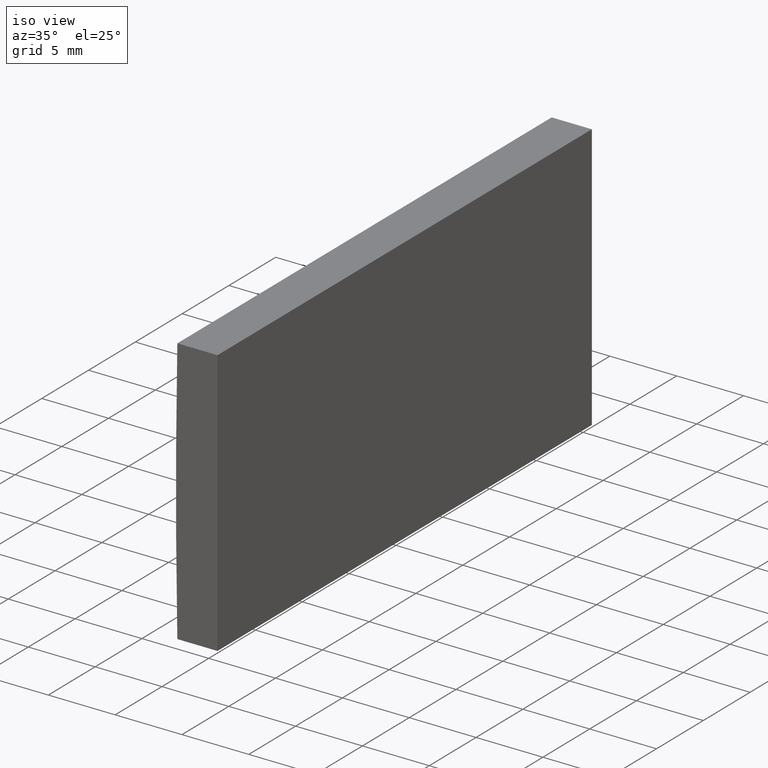
[diagram: clean part render]
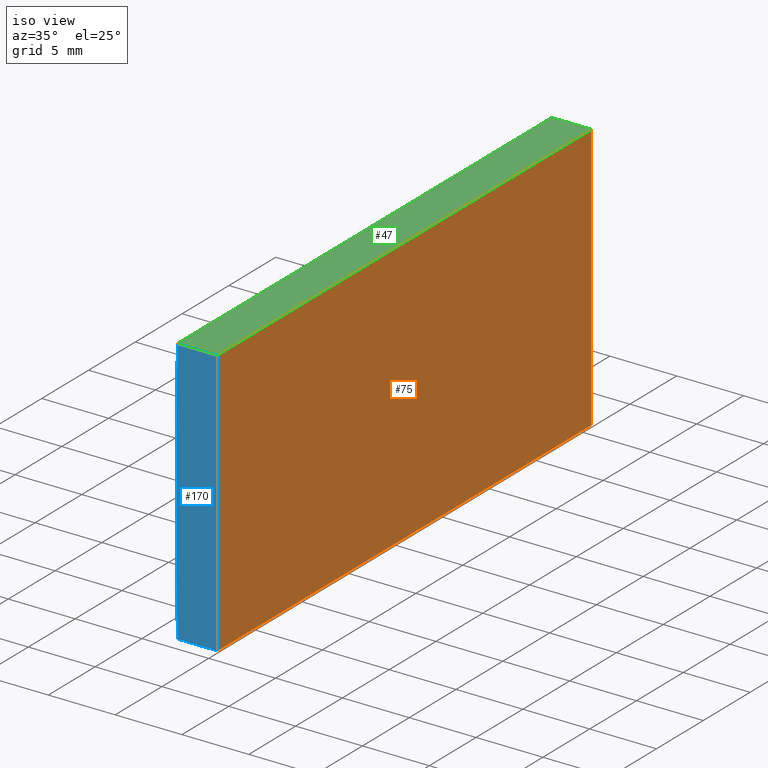
[diagram: same view with three faces highlighted in distinct colors, each labeled with its STEP entity id]
A machine part, iso view with three faces highlighted in distinct colors.
Their STEP definitions:

[orange] entity #75 — the highlighted planar face has unit normal (-1, 0, 0).
#10 = LINE ( 'NONE', #122, #81 ) ;
#19 = DIRECTION ( 'NONE',  ( -0.0000000000000000000, -1.000000000000000000, -0.0000000000000000000 ) ) ;
#22 = LINE ( 'NONE', #138, #135 ) ;
#26 = PLANE ( 'NONE',  #132 ) ;
#39 = CARTESIAN_POINT ( 'NONE',  ( -509.3447956651486900, 0.0000000000000000000, -10.00000000000000400 ) ) ;
#44 = CARTESIAN_POINT ( 'NONE',  ( -509.3447956651486900, 0.0000000000000000000, -10.00000000000000400 ) ) ;
#51 = ORIENTED_EDGE ( 'NONE', *, *, #146, .F. ) ;
#59 = LINE ( 'NONE', #82, #84 ) ;
#61 = CARTESIAN_POINT ( 'NONE',  ( -509.3447956651486900, 40.00000000000000000, -10.00000000000000400 ) ) ;
#70 = LINE ( 'NONE', #44, #139 ) ;
#74 = DIRECTION ( 'NONE',  ( 0.0000000000000000000, 0.0000000000000000000, 1.000000000000000000 ) ) ;
#75 = ADVANCED_FACE ( 'NONE', ( #193 ), #26, .F. ) ;
#81 = VECTOR ( 'NONE', #118, 1000.000000000000000 ) ;
#82 = CARTESIAN_POINT ( 'NONE',  ( -509.3447956651486900, 40.00000000000000000, -10.00000000000000400 ) ) ;
#84 = VECTOR ( 'NONE', #141, 1000.000000000000000 ) ;
#91 = DIRECTION ( 'NONE',  ( -1.000000000000000000, 0.0000000000000000000, 0.0000000000000000000 ) ) ;
#97 = VERTEX_POINT ( 'NONE', #200 ) ;
#114 = DIRECTION ( 'NONE',  ( -0.0000000000000000000, -0.0000000000000000000, -1.000000000000000000 ) ) ;
#116 = EDGE_CURVE ( 'NONE', #151, #131, #70, .T. ) ;
#118 = DIRECTION ( 'NONE',  ( -0.0000000000000000000, -1.000000000000000000, -0.0000000000000000000 ) ) ;
#122 = CARTESIAN_POINT ( 'NONE',  ( -509.3447956651486900, 40.00000000000000000, 10.00000000000000000 ) ) ;
#127 = EDGE_CURVE ( 'NONE', #97, #151, #10, .T. ) ;
#131 = VERTEX_POINT ( 'NONE', #39 ) ;
#132 = AXIS2_PLACEMENT_3D ( 'NONE', #154, #91, #74 ) ;
#135 = VECTOR ( 'NONE', #19, 1000.000000000000000 ) ;
#138 = CARTESIAN_POINT ( 'NONE',  ( -509.3447956651486900, 40.00000000000000000, -10.00000000000000400 ) ) ;
#139 = VECTOR ( 'NONE', #114, 1000.000000000000000 ) ;
#140 = EDGE_LOOP ( 'NONE', ( #183, #169, #51, #186 ) ) ;
#141 = DIRECTION ( 'NONE',  ( -0.0000000000000000000, -0.0000000000000000000, -1.000000000000000000 ) ) ;
#146 = EDGE_CURVE ( 'NONE', #97, #179, #59, .T. ) ;
#151 = VERTEX_POINT ( 'NONE', #189 ) ;
#154 = CARTESIAN_POINT ( 'NONE',  ( -509.3447956651486900, 40.00000000000000000, -10.00000000000000400 ) ) ;
#165 = EDGE_CURVE ( 'NONE', #179, #131, #22, .T. ) ;
#169 = ORIENTED_EDGE ( 'NONE', *, *, #165, .F. ) ;
#179 = VERTEX_POINT ( 'NONE', #61 ) ;
#183 = ORIENTED_EDGE ( 'NONE', *, *, #116, .T. ) ;
#186 = ORIENTED_EDGE ( 'NONE', *, *, #127, .T. ) ;
#189 = CARTESIAN_POINT ( 'NONE',  ( -509.3447956651486900, 0.0000000000000000000, 10.00000000000000000 ) ) ;
#193 = FACE_OUTER_BOUND ( 'NONE', #140, .T. ) ;
#200 = CARTESIAN_POINT ( 'NONE',  ( -509.3447956651486900, 40.00000000000000000, 10.00000000000000000 ) ) ;

[blue] entity #170 — the highlighted planar face has unit normal (0, 1, 0).
#1 = CARTESIAN_POINT ( 'NONE',  ( -512.3480373813197300, 0.0000000000000000000, 10.00000000000000000 ) ) ;
#13 = CARTESIAN_POINT ( 'NONE',  ( -512.3480373813197300, 0.0000000000000000000, -10.00000000000000000 ) ) ;
#16 = PLANE ( 'NONE',  #176 ) ;
#20 = AXIS2_PLACEMENT_3D ( 'NONE', #80, #202, #155 ) ;
#23 = ORIENTED_EDGE ( 'NONE', *, *, #116, .F. ) ;
#24 = CARTESIAN_POINT ( 'NONE',  ( -512.3480373813197300, 0.0000000000000000000, -10.00000000000000000 ) ) ;
#33 = FACE_OUTER_BOUND ( 'NONE', #100, .T. ) ;
#39 = CARTESIAN_POINT ( 'NONE',  ( -509.3447956651486900, 0.0000000000000000000, -10.00000000000000400 ) ) ;
#42 = EDGE_CURVE ( 'NONE', #145, #151, #111, .T. ) ;
#44 = CARTESIAN_POINT ( 'NONE',  ( -509.3447956651486900, 0.0000000000000000000, -10.00000000000000400 ) ) ;
#54 = VECTOR ( 'NONE', #159, 1000.000000000000000 ) ;
#64 = CIRCLE ( 'NONE', #20, 516.7999999999998400 ) ;
#66 = ORIENTED_EDGE ( 'NONE', *, *, #42, .F. ) ;
#68 = DIRECTION ( 'NONE',  ( 0.0000000000000000000, 1.000000000000000000, 0.0000000000000000000 ) ) ;
#69 = LINE ( 'NONE', #24, #54 ) ;
#70 = LINE ( 'NONE', #44, #139 ) ;
#78 = DIRECTION ( 'NONE',  ( 0.0000000000000000000, -0.0000000000000000000, 1.000000000000000000 ) ) ;
#79 = DIRECTION ( 'NONE',  ( 1.000000000000000000, 0.0000000000000000000, 0.0000000000000000000 ) ) ;
#80 = CARTESIAN_POINT ( 'NONE',  ( 4.355204334851265500, 0.0000000000000000000, 4.286263797015675000E-017 ) ) ;
#89 = EDGE_CURVE ( 'NONE', #131, #171, #69, .T. ) ;
#90 = VECTOR ( 'NONE', #79, 1000.000000000000000 ) ;
#100 = EDGE_LOOP ( 'NONE', ( #164, #175, #23, #66 ) ) ;
#111 = LINE ( 'NONE', #162, #90 ) ;
#114 = DIRECTION ( 'NONE',  ( -0.0000000000000000000, -0.0000000000000000000, -1.000000000000000000 ) ) ;
#116 = EDGE_CURVE ( 'NONE', #151, #131, #70, .T. ) ;
#129 = CARTESIAN_POINT ( 'NONE',  ( 4.355204334851265500, 0.0000000000000000000, 4.286263797015675000E-017 ) ) ;
#131 = VERTEX_POINT ( 'NONE', #39 ) ;
#139 = VECTOR ( 'NONE', #114, 1000.000000000000000 ) ;
#145 = VERTEX_POINT ( 'NONE', #1 ) ;
#151 = VERTEX_POINT ( 'NONE', #189 ) ;
#155 = DIRECTION ( 'NONE',  ( 0.0000000000000000000, 0.0000000000000000000, 1.000000000000000000 ) ) ;
#159 = DIRECTION ( 'NONE',  ( -1.000000000000000000, -0.0000000000000000000, 1.155234003734118200E-015 ) ) ;
#162 = CARTESIAN_POINT ( 'NONE',  ( -512.3480373813197300, 0.0000000000000000000, 10.00000000000000000 ) ) ;
#164 = ORIENTED_EDGE ( 'NONE', *, *, #180, .F. ) ;
#170 = ADVANCED_FACE ( 'NONE', ( #33 ), #16, .F. ) ;
#171 = VERTEX_POINT ( 'NONE', #13 ) ;
#175 = ORIENTED_EDGE ( 'NONE', *, *, #89, .F. ) ;
#176 = AXIS2_PLACEMENT_3D ( 'NONE', #129, #68, #78 ) ;
#180 = EDGE_CURVE ( 'NONE', #171, #145, #64, .T. ) ;
#189 = CARTESIAN_POINT ( 'NONE',  ( -509.3447956651486900, 0.0000000000000000000, 10.00000000000000000 ) ) ;
#202 = DIRECTION ( 'NONE',  ( 0.0000000000000000000, 1.000000000000000000, 0.0000000000000000000 ) ) ;

[green] entity #47 — the highlighted planar face has unit normal (0, 0, -1).
#1 = CARTESIAN_POINT ( 'NONE',  ( -512.3480373813197300, 0.0000000000000000000, 10.00000000000000000 ) ) ;
#10 = LINE ( 'NONE', #122, #81 ) ;
#11 = VERTEX_POINT ( 'NONE', #188 ) ;
#41 = LINE ( 'NONE', #107, #76 ) ;
#42 = EDGE_CURVE ( 'NONE', #145, #151, #111, .T. ) ;
#43 = DIRECTION ( 'NONE',  ( 0.0000000000000000000, 0.0000000000000000000, -1.000000000000000000 ) ) ;
#47 = ADVANCED_FACE ( 'NONE', ( #65 ), #87, .F. ) ;
#52 = AXIS2_PLACEMENT_3D ( 'NONE', #98, #43, #178 ) ;
#55 = ORIENTED_EDGE ( 'NONE', *, *, #99, .T. ) ;
#65 = FACE_OUTER_BOUND ( 'NONE', #124, .T. ) ;
#76 = VECTOR ( 'NONE', #88, 1000.000000000000000 ) ;
#79 = DIRECTION ( 'NONE',  ( 1.000000000000000000, 0.0000000000000000000, 0.0000000000000000000 ) ) ;
#81 = VECTOR ( 'NONE', #118, 1000.000000000000000 ) ;
#83 = EDGE_CURVE ( 'NONE', #11, #97, #201, .T. ) ;
#87 = PLANE ( 'NONE',  #52 ) ;
#88 = DIRECTION ( 'NONE',  ( -0.0000000000000000000, -1.000000000000000000, -0.0000000000000000000 ) ) ;
#90 = VECTOR ( 'NONE', #79, 1000.000000000000000 ) ;
#97 = VERTEX_POINT ( 'NONE', #200 ) ;
#98 = CARTESIAN_POINT ( 'NONE',  ( -512.3480373813197300, 40.00000000000000000, 10.00000000000000000 ) ) ;
#99 = EDGE_CURVE ( 'NONE', #11, #145, #41, .T. ) ;
#107 = CARTESIAN_POINT ( 'NONE',  ( -512.3480373813197300, 40.00000000000000000, 10.00000000000000000 ) ) ;
#110 = VECTOR ( 'NONE', #156, 1000.000000000000000 ) ;
#111 = LINE ( 'NONE', #162, #90 ) ;
#112 = ORIENTED_EDGE ( 'NONE', *, *, #42, .T. ) ;
#118 = DIRECTION ( 'NONE',  ( -0.0000000000000000000, -1.000000000000000000, -0.0000000000000000000 ) ) ;
#122 = CARTESIAN_POINT ( 'NONE',  ( -509.3447956651486900, 40.00000000000000000, 10.00000000000000000 ) ) ;
#124 = EDGE_LOOP ( 'NONE', ( #112, #173, #161, #55 ) ) ;
#127 = EDGE_CURVE ( 'NONE', #97, #151, #10, .T. ) ;
#145 = VERTEX_POINT ( 'NONE', #1 ) ;
#148 = CARTESIAN_POINT ( 'NONE',  ( -512.3480373813197300, 40.00000000000000000, 10.00000000000000000 ) ) ;
#151 = VERTEX_POINT ( 'NONE', #189 ) ;
#156 = DIRECTION ( 'NONE',  ( 1.000000000000000000, 0.0000000000000000000, 0.0000000000000000000 ) ) ;
#161 = ORIENTED_EDGE ( 'NONE', *, *, #83, .F. ) ;
#162 = CARTESIAN_POINT ( 'NONE',  ( -512.3480373813197300, 0.0000000000000000000, 10.00000000000000000 ) ) ;
#173 = ORIENTED_EDGE ( 'NONE', *, *, #127, .F. ) ;
#178 = DIRECTION ( 'NONE',  ( -1.000000000000000000, 0.0000000000000000000, -0.0000000000000000000 ) ) ;
#188 = CARTESIAN_POINT ( 'NONE',  ( -512.3480373813197300, 40.00000000000000000, 10.00000000000000000 ) ) ;
#189 = CARTESIAN_POINT ( 'NONE',  ( -509.3447956651486900, 0.0000000000000000000, 10.00000000000000000 ) ) ;
#200 = CARTESIAN_POINT ( 'NONE',  ( -509.3447956651486900, 40.00000000000000000, 10.00000000000000000 ) ) ;
#201 = LINE ( 'NONE', #148, #110 ) ;